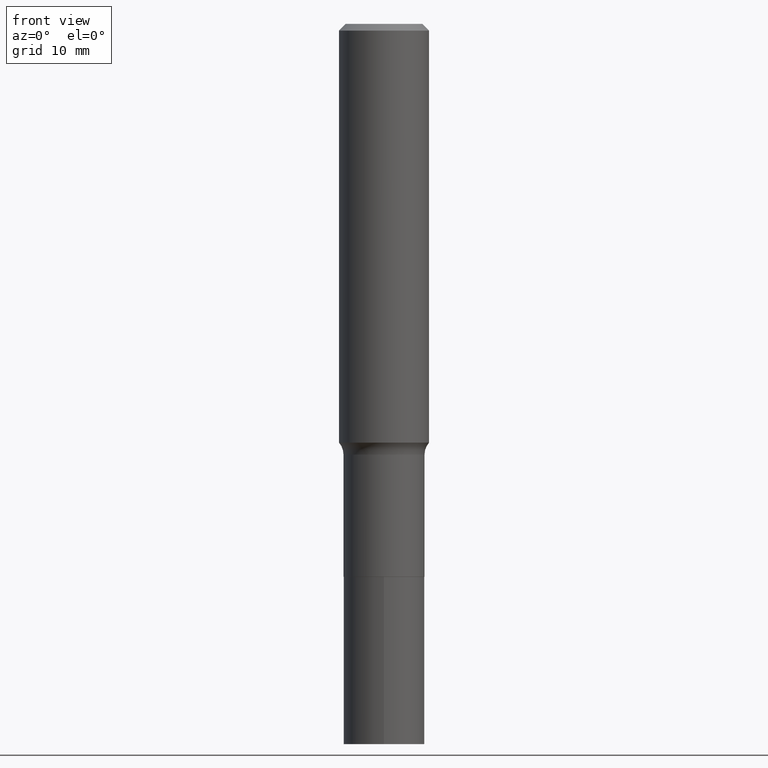
[diagram: clean part render]
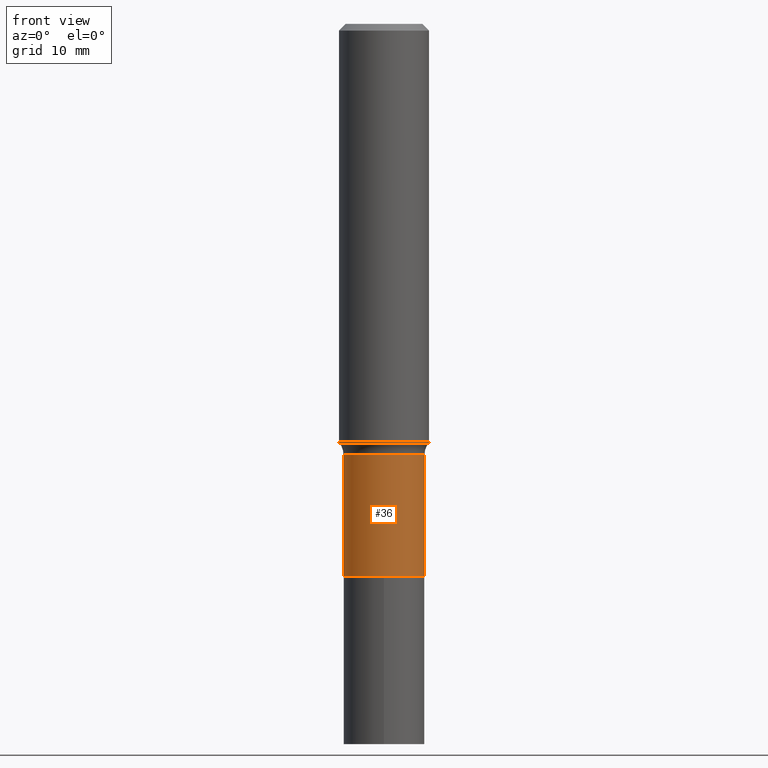
[diagram: same view with one face highlighted and labeled with its STEP entity id]
A machine part, front view. The second image highlights one B-rep face of the part: STEP entity #36.
In plain terms, the highlighted cylindrical surface (partial cylindrical patch) has radius 4.4996 mm, axis along (-0, 0, 1).
Its self-contained STEP definition (entity closure, byte-faithful):
#11 = CARTESIAN_POINT ( 'NONE',  ( 0.000000000000000000, 0.000000000000000000, 0.000000000000000000 ) ) ;
#21 = DIRECTION ( 'NONE',  ( -2.445468806185136877E-29, 3.491481338843145188E-15, 1.000000000000000000 ) ) ;
#36 = ADVANCED_FACE ( 'NONE', ( #338 ), #262, .T. ) ;
#40 = VECTOR ( 'NONE', #50, 39.37007874015748143 ) ;
#47 = EDGE_CURVE ( 'NONE', #116, #111, #222, .T. ) ;
#50 = DIRECTION ( 'NONE',  ( -2.445468806185136877E-29, 3.491481338843145188E-15, 1.000000000000000000 ) ) ;
#62 = AXIS2_PLACEMENT_3D ( 'NONE', #335, #413, #91 ) ;
#87 = DIRECTION ( 'NONE',  ( 1.000000000000000000, -6.982962677686266711E-15, 4.876176775795935793E-29 ) ) ;
#91 = DIRECTION ( 'NONE',  ( 1.000000000000000000, -6.982962677686268288E-15, 0.000000000000000000 ) ) ;
#111 = VERTEX_POINT ( 'NONE', #157 ) ;
#116 = VERTEX_POINT ( 'NONE', #292 ) ;
#135 = LINE ( 'NONE', #371, #40 ) ;
#143 = EDGE_LOOP ( 'NONE', ( #188, #327, #399, #190 ) ) ;
#153 = VECTOR ( 'NONE', #21, 39.37007874015748143 ) ;
#157 = CARTESIAN_POINT ( 'NONE',  ( 0.1771499999999999742, -7.813236940063187450E-15, -1.883500000000000174 ) ) ;
#169 = AXIS2_PLACEMENT_3D ( 'NONE', #355, #241, #274 ) ;
#172 = CARTESIAN_POINT ( 'NONE',  ( 0.1771500000000000574, -9.676291382469891790E-15, -2.417100000000000470 ) ) ;
#188 = ORIENTED_EDGE ( 'NONE', *, *, #284, .F. ) ;
#190 = ORIENTED_EDGE ( 'NONE', *, *, #47, .F. ) ;
#222 = CIRCLE ( 'NONE', #62, 0.1771499999999999742 ) ;
#230 = CIRCLE ( 'NONE', #169, 0.1771500000000000574 ) ;
#231 = LINE ( 'NONE', #383, #153 ) ;
#241 = DIRECTION ( 'NONE',  ( -2.445468806185136597E-29, 3.491481338843145583E-15, 1.000000000000000000 ) ) ;
#253 = AXIS2_PLACEMENT_3D ( 'NONE', #11, #301, #87 ) ;
#262 = CYLINDRICAL_SURFACE ( 'NONE', #253, 0.1771500000000000019 ) ;
#274 = DIRECTION ( 'NONE',  ( 1.000000000000000000, -6.982962677686270655E-15, 0.000000000000000000 ) ) ;
#284 = EDGE_CURVE ( 'NONE', #316, #116, #231, .T. ) ;
#292 = CARTESIAN_POINT ( 'NONE',  ( -0.1771499999999999742, -6.249005866515399536E-15, -1.883500000000000174 ) ) ;
#301 = DIRECTION ( 'NONE',  ( -2.445468806185136597E-29, 3.491481338843145583E-15, 1.000000000000000000 ) ) ;
#316 = VERTEX_POINT ( 'NONE', #353 ) ;
#327 = ORIENTED_EDGE ( 'NONE', *, *, #329, .T. ) ;
#329 = EDGE_CURVE ( 'NONE', #316, #362, #230, .T. ) ;
#335 = CARTESIAN_POINT ( 'NONE',  ( 4.606040496449705381E-29, -6.576205101711065057E-15, -1.883500000000000174 ) ) ;
#338 = FACE_OUTER_BOUND ( 'NONE', #143, .T. ) ;
#353 = CARTESIAN_POINT ( 'NONE',  ( -0.1771500000000000574, -6.249005866515399536E-15, -2.417100000000000470 ) ) ;
#355 = CARTESIAN_POINT ( 'NONE',  ( 5.910942651430094468E-29, -8.439259544117767818E-15, -2.417100000000000470 ) ) ;
#362 = VERTEX_POINT ( 'NONE', #172 ) ;
#371 = CARTESIAN_POINT ( 'NONE',  ( 0.1771500000000000019, -1.237031838352122197E-15, 8.638147158322499960E-30 ) ) ;
#383 = CARTESIAN_POINT ( 'NONE',  ( -0.1771500000000000019, 1.258726456399017493E-15, -8.713893512386565325E-30 ) ) ;
#399 = ORIENTED_EDGE ( 'NONE', *, *, #439, .T. ) ;
#413 = DIRECTION ( 'NONE',  ( -2.445468806185136597E-29, 3.491481338843145583E-15, 1.000000000000000000 ) ) ;
#439 = EDGE_CURVE ( 'NONE', #362, #111, #135, .T. ) ;